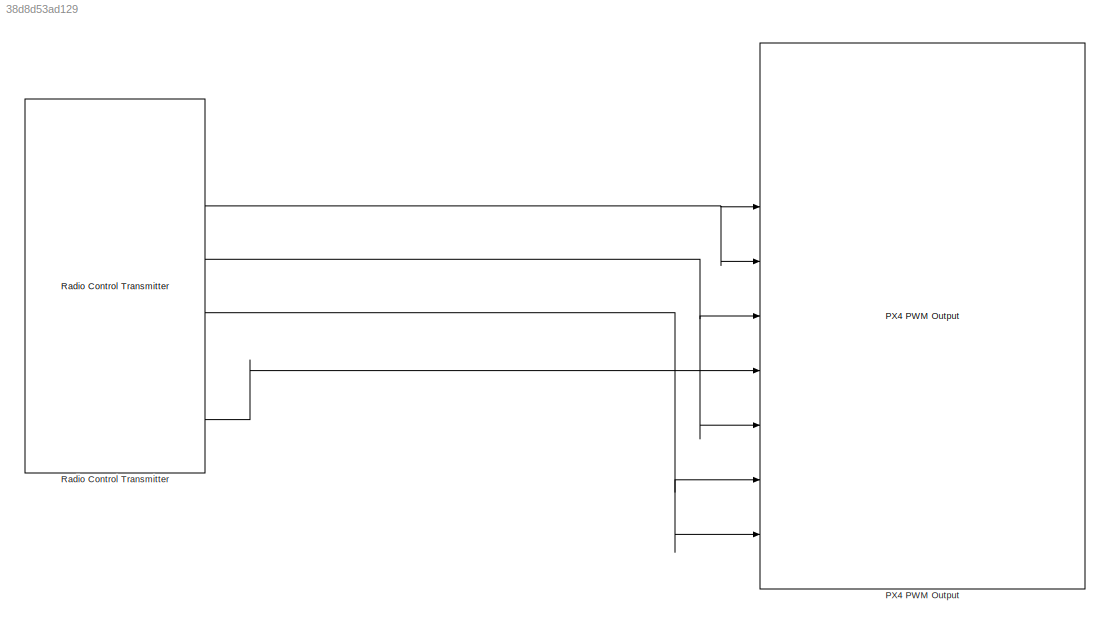
MODEL slx_38d8d53ad129
KIND model
CONFIG AbsTol = auto
CONFIG EnableMultiTasking = off
CONFIG FixedStep = auto
CONFIG MaxStep = auto
CONFIG MinStep = auto
CONFIG RelTol = 1e-3
CONFIG SampleTimeConstraint = Unconstrained
CONFIG SolverName = VariableStepAuto
CONFIG StartTime = 0.0
CONFIG StopTime = 10.0
BLOCK [Reference] PX4 PWM Output  REF=px4lib/PX4 PWM Output
  Ports = [9]
  SourceBlock = px4lib/PX4 PWM Output
  SourceProductBaseCode = PX4AUTOPILOTS
  SourceType = PX4 PWM Output
BLOCK [Reference] Radio Control Transmitter  REF=px4Sensorslib/Radio Control Transmitter
  Ports = [0, 6]
  SourceBlock = px4Sensorslib/Radio Control Transmitter
  SourceProductBaseCode = PX4AUTOPILOTS
  SourceType = PX4 Radio Control Transmitter
NET Radio Control Transmitter:2 -> PX4 PWM Output:3, PX4 PWM Output:4
NET Radio Control Transmitter:3 -> PX4 PWM Output:5, PX4 PWM Output:7
NET Radio Control Transmitter:4 -> PX4 PWM Output:8, PX4 PWM Output:9
LINE Radio Control Transmitter:6 -> PX4 PWM Output:6
note: NET lines group one-source signal fan-out (src -> all destinations, sorted); 1:1 wires keep LINE
